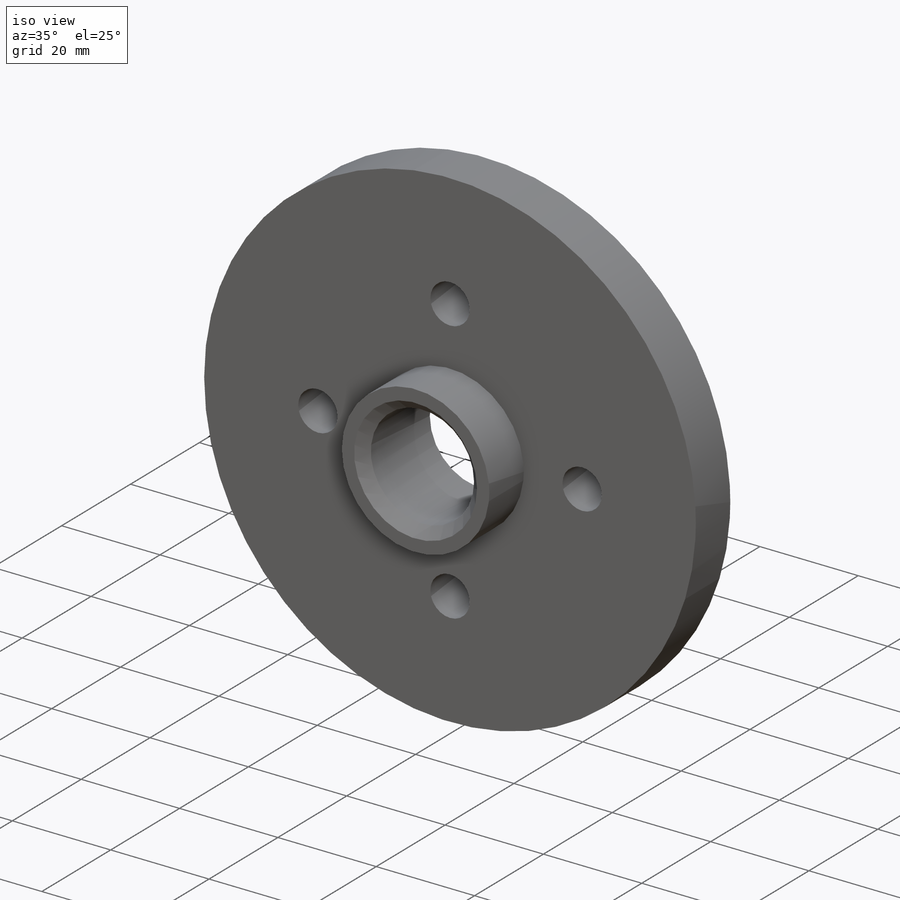
[diagram: iso view]
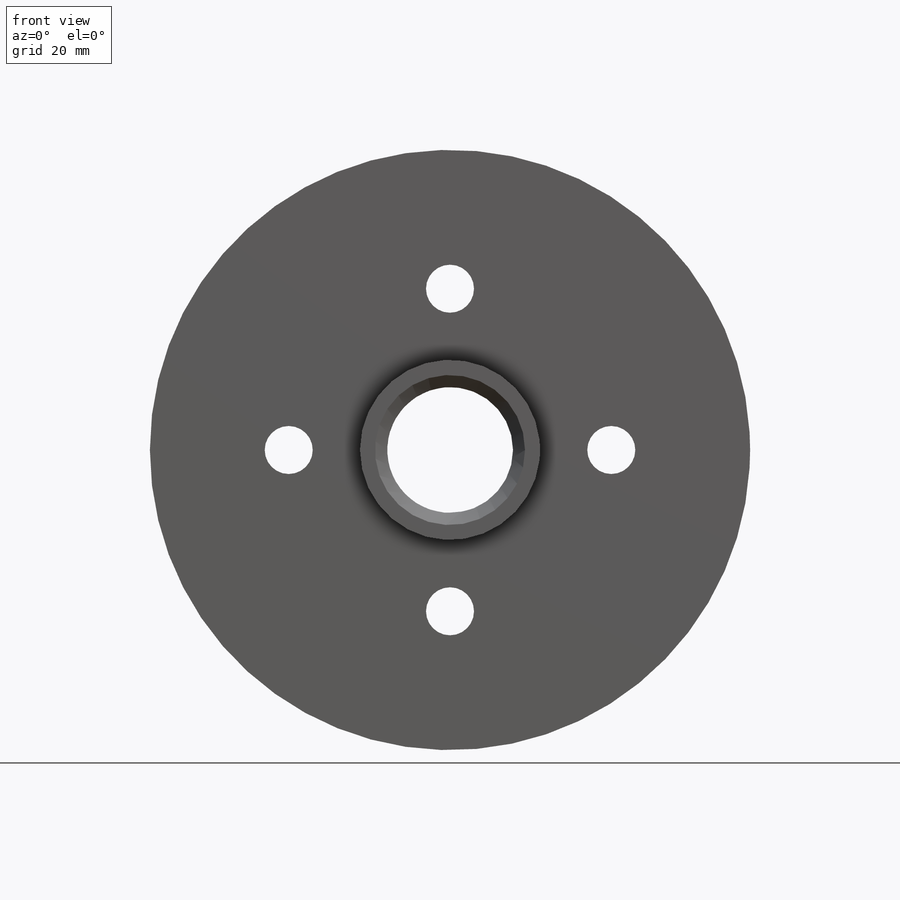
[diagram: front view]
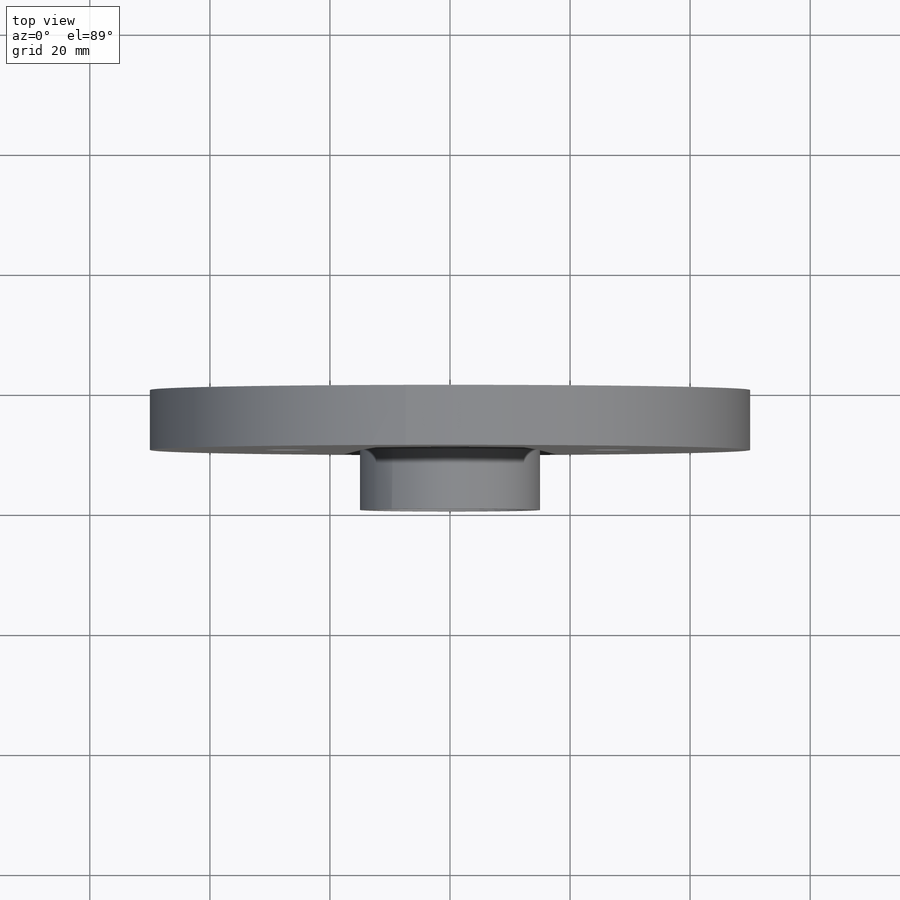
[diagram: top view]
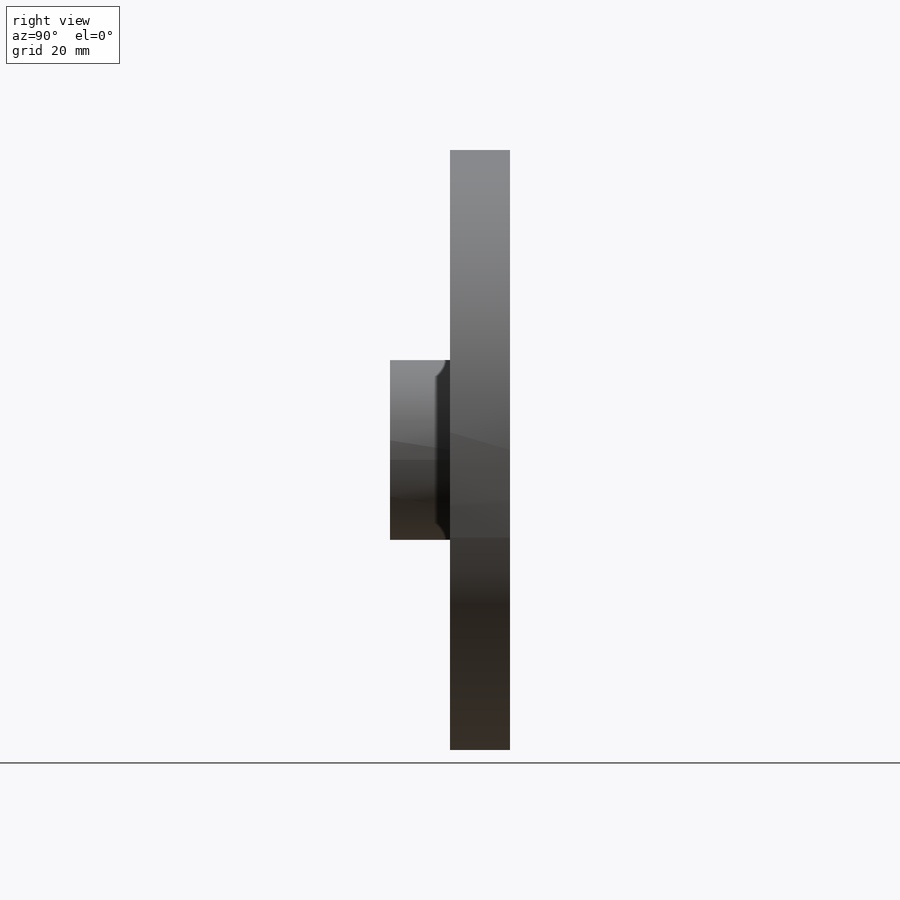
[diagram: right view]
SOLIDWORKS PART (.sldprt)
format: sldprt  version: not decoded by parser v0  size: 178,176 bytes
history: native  units: mm
features: sketch x4, plane x3, extrude x2, material x1, hole x1, thread x1, chamfer x1 (+13 scaffold rows collapsed)
feature tree (26):
  scaffold x13  (default folders/planes/origin — collapsed)
  material  "Lega 1060"
  plane  "Piano frontale"
  plane  "Piano superiore"
  plane  "Piano destro"
  sketch  "Schizzo1"  dims[D1=100.0mm D2=16.0mm D3=8.0mm D5=38.0mm D4=4.0]
  extrude  "Estrusione-Estrusione1"  Depth=10mm
  sketch  "Schizzo2"  dims[D1=30.0mm]
  extrude  "Estrusione-Estrusione2"  Depth=10mm
  hole  "Foro filettato M24-1"  Diameter=21mm Depth=20mm
  sketch  "Schizzo7"
  sketch  "Schizzo6"  dims[hole-wizard template sketch: 54 standard entries collapsed; hole parameters kept: c17.Thru Tap Drill Dia.=21.0mm c17.Thru Tap Drill Depth=20.0mm c17.Near C'Sink Dia.=24.05mm c17.D4=~3.666174mm c17.Near C'Sink Angle=120.0deg]
  thread  "Filettatura del foro2"  Diameter=24mm  [1 undecoded]
  chamfer  "Smusso1"  Distance=2mm Angle=45deg
decode coverage: 8 of 9 modeling features carry decoded parameters
note: ~ marks probable driven/reference dimensions
note: 1 parameter value undecoded
note: suppression state not decoded; provenance and decode notes live in map.json
